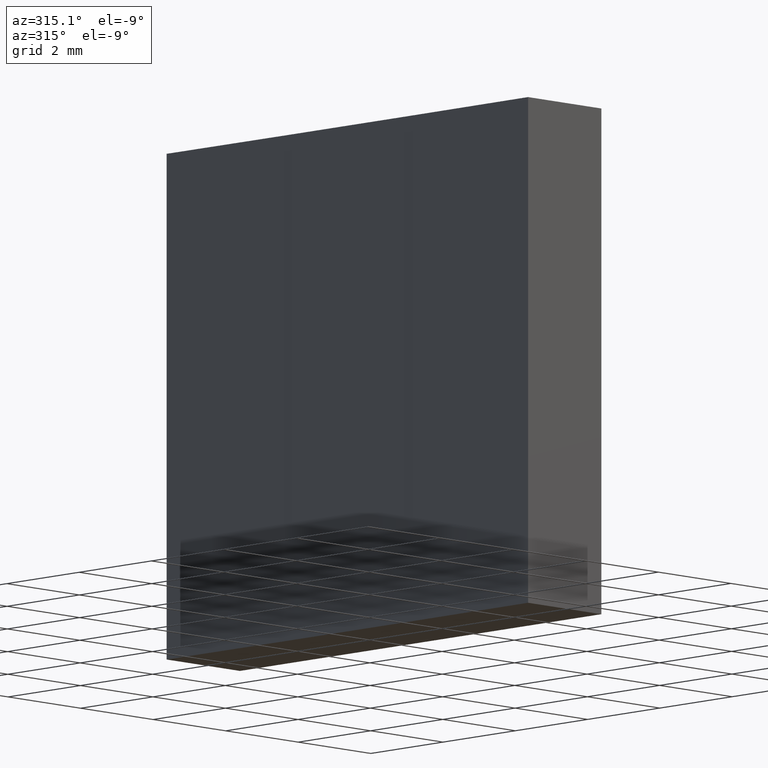
[diagram: clean part render]
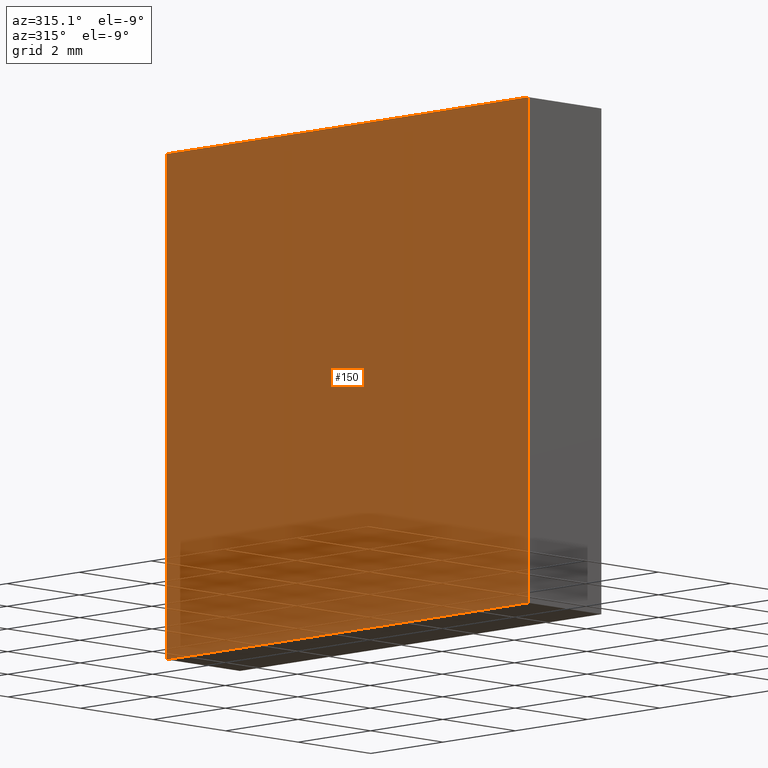
[diagram: same view with one face highlighted and labeled with its STEP entity id]
A machine part, auxiliary view. The second image highlights one B-rep face of the part: STEP entity #150.
In plain terms, the highlighted cylindrical surface (partial cylindrical patch) has radius 516.8 mm, axis along (-0, -0, -1).
Its self-contained STEP definition (entity closure, byte-faithful):
#5 = CARTESIAN_POINT ( 'NONE',  ( 431.8543084995877166, -124.5310099826064203, 10.00000000000000000 ) ) ;
#14 = AXIS2_PLACEMENT_3D ( 'NONE', #81, #229, #123 ) ;
#21 = DIRECTION ( 'NONE',  ( -1.000000000000000000, 0.000000000000000000, 0.000000000000000000 ) ) ;
#22 = CARTESIAN_POINT ( 'NONE',  ( 431.8543084995877166, -114.5310099826064345, 10.00000000000000000 ) ) ;
#34 = EDGE_CURVE ( 'NONE', #116, #55, #138, .T. ) ;
#40 = FACE_OUTER_BOUND ( 'NONE', #185, .T. ) ;
#46 = CARTESIAN_POINT ( 'NONE',  ( 431.8543084995877166, -114.5310099826064345, 10.00000000000000000 ) ) ;
#49 = VECTOR ( 'NONE', #174, 1000.000000000000000 ) ;
#52 = ORIENTED_EDGE ( 'NONE', *, *, #62, .F. ) ;
#55 = VERTEX_POINT ( 'NONE', #211 ) ;
#56 = ORIENTED_EDGE ( 'NONE', *, *, #111, .T. ) ;
#62 = EDGE_CURVE ( 'NONE', #74, #116, #120, .T. ) ;
#63 = CARTESIAN_POINT ( 'NONE',  ( 431.8543084995877166, -124.5310099826064203, 10.00000000000000000 ) ) ;
#64 = VECTOR ( 'NONE', #143, 1000.000000000000000 ) ;
#65 = CARTESIAN_POINT ( 'NONE',  ( -84.92150362787631934, -119.5310099826064345, 10.00000000000000000 ) ) ;
#74 = VERTEX_POINT ( 'NONE', #22 ) ;
#80 = DIRECTION ( 'NONE',  ( 1.000000000000000000, 0.000000000000000000, 0.000000000000000000 ) ) ;
#81 = CARTESIAN_POINT ( 'NONE',  ( -84.92150362787631934, -119.5310099826064345, 0.000000000000000000 ) ) ;
#109 = ORIENTED_EDGE ( 'NONE', *, *, #236, .T. ) ;
#111 = EDGE_CURVE ( 'NONE', #132, #55, #202, .T. ) ;
#113 = ORIENTED_EDGE ( 'NONE', *, *, #34, .F. ) ;
#116 = VERTEX_POINT ( 'NONE', #5 ) ;
#118 = DIRECTION ( 'NONE',  ( -0.000000000000000000, -0.000000000000000000, -1.000000000000000000 ) ) ;
#120 = CIRCLE ( 'NONE', #234, 516.8000000000000682 ) ;
#123 = DIRECTION ( 'NONE',  ( 1.000000000000000000, 0.000000000000000000, 0.000000000000000000 ) ) ;
#132 = VERTEX_POINT ( 'NONE', #157 ) ;
#138 = LINE ( 'NONE', #63, #49 ) ;
#143 = DIRECTION ( 'NONE',  ( -0.000000000000000000, -0.000000000000000000, -1.000000000000000000 ) ) ;
#145 = LINE ( 'NONE', #46, #64 ) ;
#150 = ADVANCED_FACE ( 'NONE', ( #40 ), #189, .F. ) ;
#156 = DIRECTION ( 'NONE',  ( -0.000000000000000000, -0.000000000000000000, -1.000000000000000000 ) ) ;
#157 = CARTESIAN_POINT ( 'NONE',  ( 431.8543084995877166, -114.5310099826064345, 0.000000000000000000 ) ) ;
#172 = CARTESIAN_POINT ( 'NONE',  ( -84.92150362787631934, -119.5310099826064345, 10.00000000000000000 ) ) ;
#173 = AXIS2_PLACEMENT_3D ( 'NONE', #65, #118, #21 ) ;
#174 = DIRECTION ( 'NONE',  ( -0.000000000000000000, -0.000000000000000000, -1.000000000000000000 ) ) ;
#185 = EDGE_LOOP ( 'NONE', ( #56, #113, #52, #109 ) ) ;
#189 = CYLINDRICAL_SURFACE ( 'NONE', #173, 516.8000000000000682 ) ;
#202 = CIRCLE ( 'NONE', #14, 516.8000000000000682 ) ;
#211 = CARTESIAN_POINT ( 'NONE',  ( 431.8543084995877166, -124.5310099826064203, 0.000000000000000000 ) ) ;
#229 = DIRECTION ( 'NONE',  ( -0.000000000000000000, -0.000000000000000000, -1.000000000000000000 ) ) ;
#234 = AXIS2_PLACEMENT_3D ( 'NONE', #172, #156, #80 ) ;
#236 = EDGE_CURVE ( 'NONE', #74, #132, #145, .T. ) ;